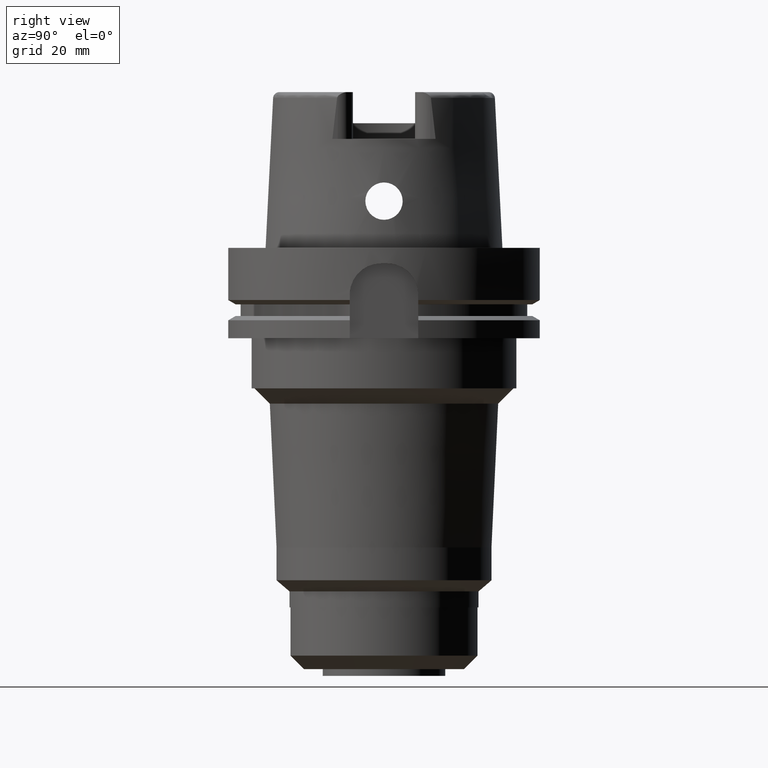
[diagram: clean part render]
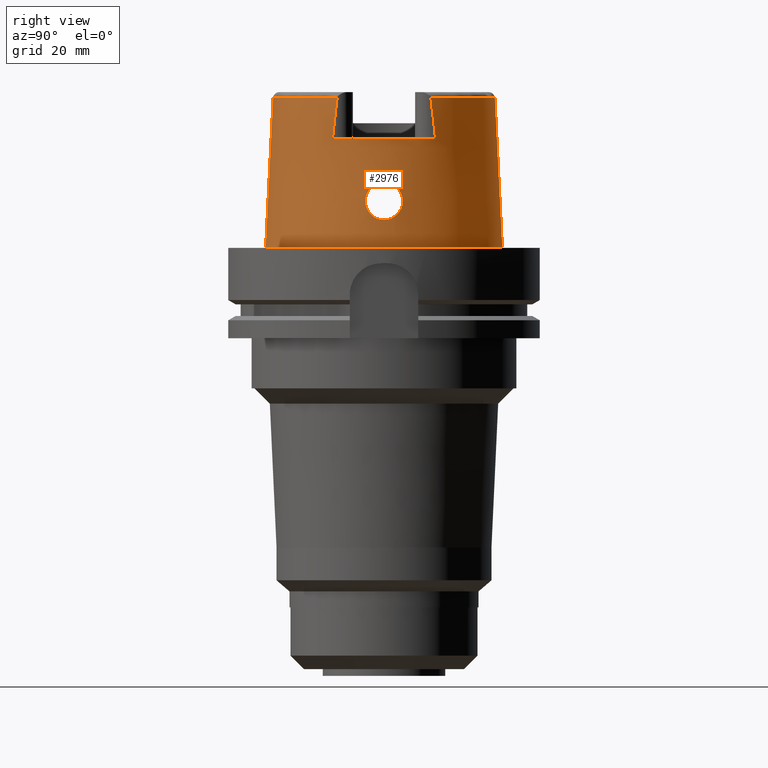
[diagram: same view with one face highlighted and labeled with its STEP entity id]
A machine part, right view. The second image highlights one B-rep face of the part: STEP entity #2976.
In plain terms, the highlighted conical surface has half-angle 2.862 deg.
Its self-contained STEP definition (entity closure, byte-faithful):
#284=CARTESIAN_POINT('',(3.224998031256E1,-1.506460487049E1,4.809929718881E1));
#289=CARTESIAN_POINT('',(0.E0,1.812477262738E-14,4.809987853799E1));
#290=DIRECTION('',(0.E0,0.E0,-1.E0));
#291=DIRECTION('',(9.060259215417E-1,-4.232221987260E-1,0.E0));
#292=AXIS2_PLACEMENT_3D('',#289,#290,#291);
#315=DIRECTION('',(7.321802361827E-5,-4.993927971537E-2,-9.987522530541E-1));
#316=VECTOR('',#315,4.815996999346E1);
#317=CARTESIAN_POINT('',(-3.526177820433E-3,-3.559494236993E1,
4.809987853799E1));
#318=LINE('',#317,#316);
#360=DIRECTION('',(-7.321802361841E-5,4.993927971537E-2,-9.987522530541E-1));
#361=VECTOR('',#360,4.815996999346E1);
#362=CARTESIAN_POINT('',(3.526177820440E-3,3.559494236993E1,4.809987853799E1));
#363=LINE('',#362,#361);
#367=CARTESIAN_POINT('',(3.694998175923E1,-1.343957931636E-13,2.1E1));
#368=CARTESIAN_POINT('',(3.694998175923E1,-5.236375173091E-1,2.1E1));
#369=CARTESIAN_POINT('',(3.693410516903E1,-1.571779026106E0,2.086209702536E1));
#370=CARTESIAN_POINT('',(3.687080795394E1,-3.039509416325E0,2.025365604681E1));
#371=CARTESIAN_POINT('',(3.679101182304E1,-4.300244508790E0,1.928281814723E1));
#372=CARTESIAN_POINT('',(3.672650838589E1,-5.261084235410E0,1.802510563221E1));
#373=CARTESIAN_POINT('',(3.670708439370E1,-5.863663836246E0,1.656238347375E1));
#374=CARTESIAN_POINT('',(3.675209437584E1,-6.067747653255E0,1.500485484838E1));
#375=CARTESIAN_POINT('',(3.686489690623E1,-5.865337633962E0,1.344207196089E1));
#376=CARTESIAN_POINT('',(3.703208582064E1,-5.261875775039E0,1.197547197252E1));
#377=CARTESIAN_POINT('',(3.722304296733E1,-4.296388261052E0,1.071212682092E1));
#378=CARTESIAN_POINT('',(3.739936144898E1,-3.027022033901E0,9.738796961908E0));
#379=CARTESIAN_POINT('',(3.752122290104E1,-1.560407249677E0,9.135522710888E0));
#380=CARTESIAN_POINT('',(3.755000165825E1,-5.188962022353E-1,9.E0));
#381=CARTESIAN_POINT('',(3.755000165825E1,0.E0,9.E0));
#386=CARTESIAN_POINT('',(3.755000165825E1,0.E0,9.E0));
#387=CARTESIAN_POINT('',(3.755000165825E1,5.181324228973E-1,9.E0));
#388=CARTESIAN_POINT('',(3.752124870367E1,1.556199901584E0,9.135450921221E0));
#389=CARTESIAN_POINT('',(3.740111172073E1,3.009063801846E0,9.730054046747E0));
#390=CARTESIAN_POINT('',(3.722661837906E1,4.274837061563E0,1.069117512345E1));
#391=CARTESIAN_POINT('',(3.703525210561E1,5.248832603181E0,1.195118230514E1));
#392=CARTESIAN_POINT('',(3.686585576752E1,5.863513971307E0,1.342942056501E1));
#393=CARTESIAN_POINT('',(3.675177419992E1,6.068817617538E0,1.500759241288E1));
#394=CARTESIAN_POINT('',(3.670699418674E1,5.861201311018E0,1.657223823211E1));
#395=CARTESIAN_POINT('',(3.672678584119E1,5.256992953770E0,1.803106291692E1));
#396=CARTESIAN_POINT('',(3.679101999752E1,4.299982276118E0,1.928229163002E1));
#397=CARTESIAN_POINT('',(3.687062198582E1,3.042738883698E0,2.025172231500E1));
#398=CARTESIAN_POINT('',(3.693404988029E1,1.574190825036E0,2.086163503045E1));
#399=CARTESIAN_POINT('',(3.694998175923E1,5.246757601806E-1,2.1E1));
#400=CARTESIAN_POINT('',(3.694998175923E1,-1.343957931636E-13,2.1E1));
#435=CARTESIAN_POINT('',(0.E0,1.519173610602E-14,3.5E1));
#436=DIRECTION('',(0.E0,0.E0,-1.E0));
#437=DIRECTION('',(8.896561898443E-1,4.566309931135E-1,0.E0));
#438=AXIS2_PLACEMENT_3D('',#435,#436,#437);
#507=CARTESIAN_POINT('',(3.224999527510E1,-1.655287543507E1,3.5E1));
#508=CARTESIAN_POINT('',(3.224999527510E1,-1.639341859026E1,3.645621288231E1));
#509=CARTESIAN_POINT('',(3.224999957996E1,-1.607118641031E1,3.936829805956E1));
#510=CARTESIAN_POINT('',(3.225000855749E1,-1.557477299858E1,4.373473901134E1));
#511=CARTESIAN_POINT('',(3.224998031256E1,-1.523637807386E1,4.664538075179E1));
#512=CARTESIAN_POINT('',(3.224998031256E1,-1.506460487049E1,4.809929718881E1));
#2122=CARTESIAN_POINT('',(0.E0,1.519173610602E-14,6.821210263297E-13));
#2123=DIRECTION('',(0.E0,0.E0,1.E0));
#2124=DIRECTION('',(0.E0,-1.E0,0.E0));
#2125=AXIS2_PLACEMENT_3D('',#2122,#2123,#2124);
#2334=CARTESIAN_POINT('',(0.E0,1.812477262738E-14,4.809987853799E1));
#2335=DIRECTION('',(0.E0,0.E0,-1.E0));
#2336=DIRECTION('',(0.E0,1.E0,0.E0));
#2337=AXIS2_PLACEMENT_3D('',#2334,#2335,#2336);
#2378=CARTESIAN_POINT('',(3.225000552017E1,1.506439893772E1,4.810003614610E1));
#2379=CARTESIAN_POINT('',(3.225000552017E1,1.523630629122E1,4.664499987725E1));
#2380=CARTESIAN_POINT('',(3.225000026293E1,1.557504654421E1,4.373494463781E1));
#2381=CARTESIAN_POINT('',(3.224999079949E1,1.607149001717E1,3.936828129237E1));
#2382=CARTESIAN_POINT('',(3.225002129258E1,1.639330335239E1,3.645620266028E1));
#2383=CARTESIAN_POINT('',(3.225002129258E1,1.655276054280E1,3.5E1));
#2444=CARTESIAN_POINT('',(0.E0,3.559494289391E1,4.809987853799E1));
#2445=VERTEX_POINT('',#2444);
#2446=CARTESIAN_POINT('',(3.225001656051E1,1.506440810212E1,4.809987853799E1));
#2447=VERTEX_POINT('',#2446);
#2451=VERTEX_POINT('',#284);
#2452=CARTESIAN_POINT('',(0.E0,-3.559494289391E1,4.809987853799E1));
#2453=VERTEX_POINT('',#2452);
#2454=CARTESIAN_POINT('',(0.E0,-3.800001658252E1,1.563194018672E-13));
#2455=VERTEX_POINT('',#2454);
#2456=CARTESIAN_POINT('',(0.E0,3.800001658252E1,6.821210263297E-13));
#2457=VERTEX_POINT('',#2456);
#2460=CARTESIAN_POINT('',(3.225E1,1.655285457013E1,3.5E1));
#2461=CARTESIAN_POINT('',(3.225E1,-1.655285457013E1,3.5E1));
#2462=VERTEX_POINT('',#2460);
#2463=VERTEX_POINT('',#2461);
#2464=VERTEX_POINT('',#367);
#2465=VERTEX_POINT('',#381);
#2950=CARTESIAN_POINT('',(0.E0,1.519173610602E-14,2.404993926900E1));
#2951=DIRECTION('',(0.E0,0.E0,-1.E0));
#2952=DIRECTION('',(0.E0,-1.E0,0.E0));
#2953=AXIS2_PLACEMENT_3D('',#2950,#2951,#2952);
#2954=CONICAL_SURFACE('',#2953,3.679747973821E1,2.8625E0);
#2956=ORIENTED_EDGE('',*,*,#2955,.F.);
#2958=ORIENTED_EDGE('',*,*,#2957,.F.);
#2960=ORIENTED_EDGE('',*,*,#2959,.F.);
#2961=ORIENTED_EDGE('',*,*,#2935,.T.);
#2963=ORIENTED_EDGE('',*,*,#2962,.F.);
#2964=ORIENTED_EDGE('',*,*,#2931,.F.);
#2965=ORIENTED_EDGE('',*,*,#2903,.F.);
#2967=ORIENTED_EDGE('',*,*,#2966,.F.);
#2968=EDGE_LOOP('',(#2956,#2958,#2960,#2961,#2963,#2964,#2965,#2967));
#2969=FACE_OUTER_BOUND('',#2968,.F.);
#2971=ORIENTED_EDGE('',*,*,#2970,.T.);
#2973=ORIENTED_EDGE('',*,*,#2972,.T.);
#2974=EDGE_LOOP('',(#2971,#2973));
#2975=FACE_BOUND('',#2974,.F.);
#293=CIRCLE('',#292,3.559494289391E1);
#382=B_SPLINE_CURVE_WITH_KNOTS('',3,(#367,#368,#369,#370,#371,#372,#373,#374,
#375,#376,#377,#378,#379,#380,#381),.UNSPECIFIED.,.F.,.F.,(4,1,1,1,1,1,1,1,1,1,
1,1,4),(0.E0,8.333333333333E-2,1.666666666667E-1,2.5E-1,3.333333333333E-1,
4.166666666667E-1,5.E-1,5.833333333333E-1,6.666666666667E-1,7.5E-1,
8.333333333333E-1,9.166666666667E-1,1.E0),.UNSPECIFIED.);
#401=B_SPLINE_CURVE_WITH_KNOTS('',3,(#386,#387,#388,#389,#390,#391,#392,#393,
#394,#395,#396,#397,#398,#399,#400),.UNSPECIFIED.,.F.,.F.,(4,1,1,1,1,1,1,1,1,1,
1,1,4),(0.E0,8.333333333333E-2,1.666666666667E-1,2.5E-1,3.333333333333E-1,
4.166666666667E-1,5.E-1,5.833333333333E-1,6.666666666667E-1,7.5E-1,
8.333333333333E-1,9.166666666667E-1,1.E0),.UNSPECIFIED.);
#439=CIRCLE('',#438,3.624995854370E1);
#513=B_SPLINE_CURVE_WITH_KNOTS('',3,(#507,#508,#509,#510,#511,#512),
.UNSPECIFIED.,.F.,.F.,(4,1,1,4),(0.E0,3.333333333333E-1,6.666666666667E-1,1.E0),
.UNSPECIFIED.);
#2126=CIRCLE('',#2125,3.800001658252E1);
#2338=CIRCLE('',#2337,3.559494289391E1);
#2384=B_SPLINE_CURVE_WITH_KNOTS('',3,(#2378,#2379,#2380,#2381,#2382,#2383),
.UNSPECIFIED.,.F.,.F.,(4,1,1,4),(0.E0,3.333333333333E-1,6.666666666667E-1,1.E0),
.UNSPECIFIED.);
#2903=EDGE_CURVE('',#2451,#2453,#293,.T.);
#2931=EDGE_CURVE('',#2453,#2455,#318,.T.);
#2935=EDGE_CURVE('',#2445,#2457,#363,.T.);
#2955=EDGE_CURVE('',#2462,#2463,#439,.T.);
#2957=EDGE_CURVE('',#2447,#2462,#2384,.T.);
#2959=EDGE_CURVE('',#2445,#2447,#2338,.T.);
#2962=EDGE_CURVE('',#2455,#2457,#2126,.T.);
#2966=EDGE_CURVE('',#2463,#2451,#513,.T.);
#2970=EDGE_CURVE('',#2464,#2465,#382,.T.);
#2972=EDGE_CURVE('',#2465,#2464,#401,.T.);
#2976=ADVANCED_FACE('',(#2969,#2975),#2954,.T.);